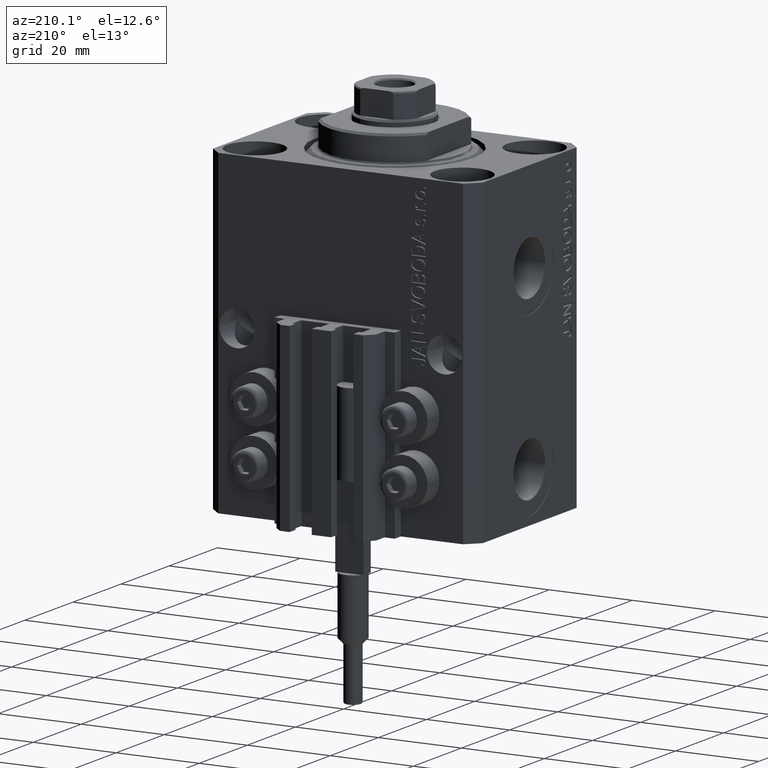
[diagram: clean part render]
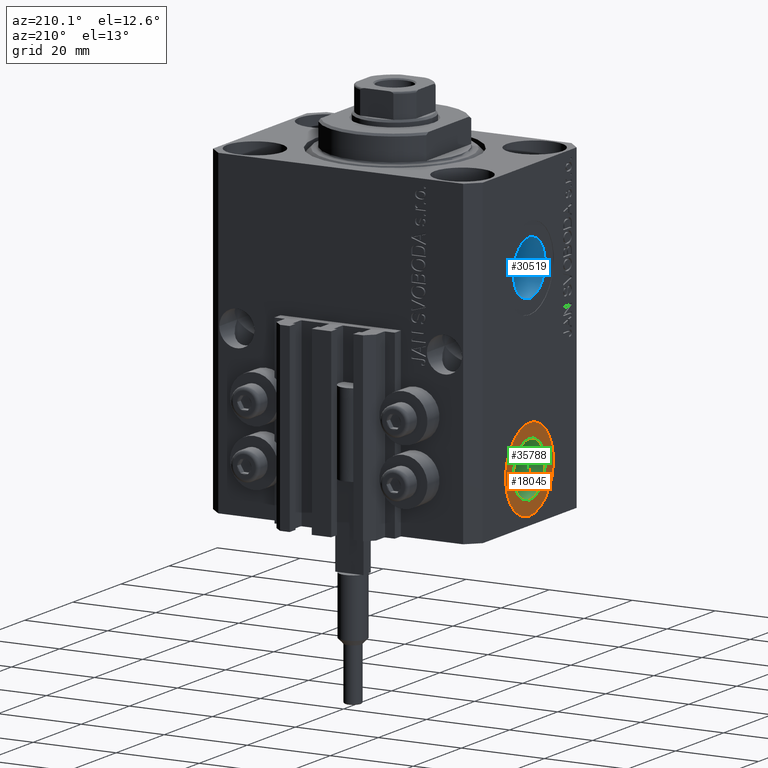
[diagram: same view with three faces highlighted in distinct colors, each labeled with its STEP entity id]
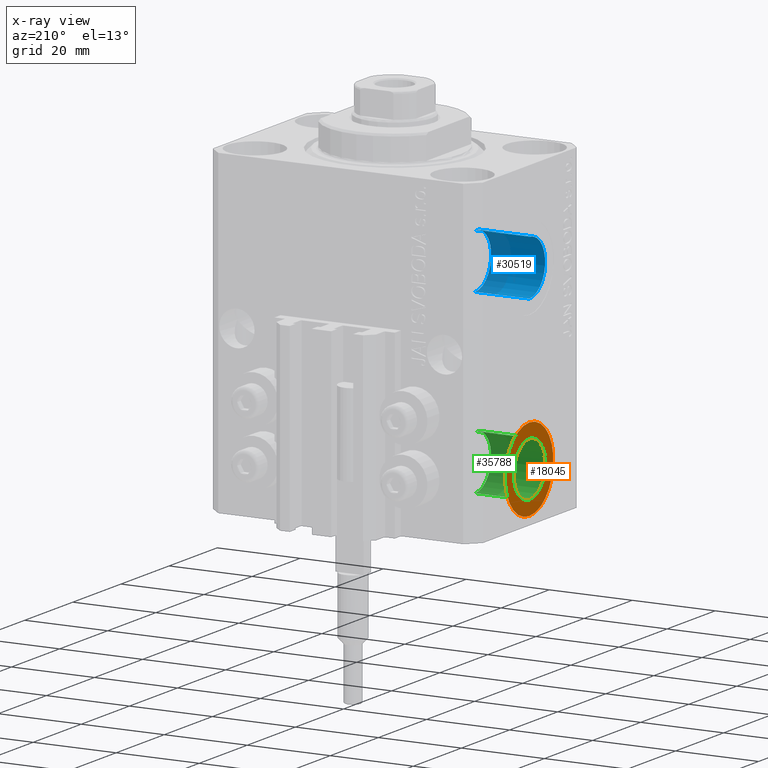
[diagram: x-ray of the same camera — body ghosted, the three highlighted faces saturated]
A machine part, auxiliary view with three faces highlighted in distinct colors.
The next image is the same camera in x-ray (body ghosted, the three faces saturated) — at least one of them is partly hidden behind the body in this view.
Their STEP definitions:

[orange] entity #18045 — the highlighted planar face has unit normal (-1, 0, 0).
#627 = DIRECTION ( 'NONE',  ( 0.000000000000000000, 0.000000000000000000, 1.000000000000000000 ) ) ;
#1023 = VERTEX_POINT ( 'NONE', #21652 ) ;
#1688 = DIRECTION ( 'NONE',  ( 0.000000000000000000, 0.000000000000000000, 1.000000000000000000 ) ) ;
#2278 = CARTESIAN_POINT ( 'NONE',  ( -32.39999999999650271, -6.938893903907228378E-15, -65.00000000000000000 ) ) ;
#3011 = DIRECTION ( 'NONE',  ( -1.000000000000000000, 0.000000000000000000, 0.000000000000000000 ) ) ;
#3275 = AXIS2_PLACEMENT_3D ( 'NONE', #34803, #5615, #1688 ) ;
#4843 = AXIS2_PLACEMENT_3D ( 'NONE', #2278, #13320, #32423 ) ;
#4921 = CIRCLE ( 'NONE', #43240, 9.999999999999994671 ) ;
#5615 = DIRECTION ( 'NONE',  ( -1.000000000000000000, 0.000000000000000000, 0.000000000000000000 ) ) ;
#7196 = CIRCLE ( 'NONE', #17376, 6.580000000000002736 ) ;
#9577 = DIRECTION ( 'NONE',  ( -1.000000000000000000, 0.000000000000000000, 0.000000000000000000 ) ) ;
#10133 = VERTEX_POINT ( 'NONE', #27253 ) ;
#10549 = CARTESIAN_POINT ( 'NONE',  ( -32.39999999999650271, -6.938893903907228378E-15, -65.00000000000000000 ) ) ;
#11468 = EDGE_CURVE ( 'NONE', #1023, #30636, #13744, .T. ) ;
#12946 = AXIS2_PLACEMENT_3D ( 'NONE', #29560, #22689, #627 ) ;
#13320 = DIRECTION ( 'NONE',  ( -1.000000000000000000, 0.000000000000000000, 0.000000000000000000 ) ) ;
#13744 = CIRCLE ( 'NONE', #12946, 9.999999999999994671 ) ;
#15809 = EDGE_LOOP ( 'NONE', ( #45282, #20601 ) ) ;
#17376 = AXIS2_PLACEMENT_3D ( 'NONE', #22119, #3011, #28988 ) ;
#17533 = EDGE_CURVE ( 'NONE', #10133, #42196, #7196, .T. ) ;
#18045 = ADVANCED_FACE ( 'NONE', ( #35261, #24242 ), #42881, .T. ) ;
#18541 = CARTESIAN_POINT ( 'NONE',  ( -32.39999999999650271, -6.938893903907228378E-15, -55.00000000000000711 ) ) ;
#20601 = ORIENTED_EDGE ( 'NONE', *, *, #11468, .T. ) ;
#21546 = CARTESIAN_POINT ( 'NONE',  ( -32.39999999999650271, -6.133076310068269336E-15, -71.57999999999999829 ) ) ;
#21652 = CARTESIAN_POINT ( 'NONE',  ( -32.39999999999650271, -5.714247104759875318E-15, -75.00000000000000000 ) ) ;
#22037 = EDGE_CURVE ( 'NONE', #30636, #1023, #4921, .T. ) ;
#22119 = CARTESIAN_POINT ( 'NONE',  ( -32.39999999999650271, -6.938893903907228378E-15, -65.00000000000000000 ) ) ;
#22689 = DIRECTION ( 'NONE',  ( -1.000000000000000000, 0.000000000000000000, 0.000000000000000000 ) ) ;
#24242 = FACE_OUTER_BOUND ( 'NONE', #15809, .T. ) ;
#25939 = CIRCLE ( 'NONE', #4843, 6.580000000000002736 ) ;
#27253 = CARTESIAN_POINT ( 'NONE',  ( -32.39999999999650271, -6.938893903907228378E-15, -58.42000000000000171 ) ) ;
#28988 = DIRECTION ( 'NONE',  ( 0.000000000000000000, 0.000000000000000000, 1.000000000000000000 ) ) ;
#29560 = CARTESIAN_POINT ( 'NONE',  ( -32.39999999999650271, -6.938893903907228378E-15, -65.00000000000000000 ) ) ;
#30636 = VERTEX_POINT ( 'NONE', #18541 ) ;
#32423 = DIRECTION ( 'NONE',  ( 0.000000000000000000, 0.000000000000000000, 1.000000000000000000 ) ) ;
#33421 = ORIENTED_EDGE ( 'NONE', *, *, #46789, .F. ) ;
#34803 = CARTESIAN_POINT ( 'NONE',  ( -32.39999999999650271, -6.938893903907228378E-15, -65.00000000000000000 ) ) ;
#35261 = FACE_BOUND ( 'NONE', #42822, .T. ) ;
#42196 = VERTEX_POINT ( 'NONE', #21546 ) ;
#42514 = ORIENTED_EDGE ( 'NONE', *, *, #17533, .F. ) ;
#42822 = EDGE_LOOP ( 'NONE', ( #42514, #33421 ) ) ;
#42881 = PLANE ( 'NONE',  #3275 ) ;
#43240 = AXIS2_PLACEMENT_3D ( 'NONE', #10549, #9577, #43874 ) ;
#43874 = DIRECTION ( 'NONE',  ( 0.000000000000000000, 0.000000000000000000, 1.000000000000000000 ) ) ;
#45282 = ORIENTED_EDGE ( 'NONE', *, *, #22037, .T. ) ;
#46789 = EDGE_CURVE ( 'NONE', #42196, #10133, #25939, .T. ) ;

[blue] entity #30519 — the highlighted cylindrical surface (edge-blend (fillet) strip) has radius 6.58 mm, axis along (-1, -0, -0).
#340 = DIRECTION ( 'NONE',  ( 0.000000000000000000, 0.000000000000000000, 1.000000000000000000 ) ) ;
#1057 = CARTESIAN_POINT ( 'NONE',  ( -19.39999999999650271, 8.058175938389580558E-16, -28.57999999999999829 ) ) ;
#2318 = DIRECTION ( 'NONE',  ( -1.000000000000000000, -0.000000000000000000, -0.000000000000000000 ) ) ;
#2934 = CARTESIAN_POINT ( 'NONE',  ( -32.39999999999650271, 0.000000000000000000, -15.41999999999999993 ) ) ;
#5320 = VERTEX_POINT ( 'NONE', #19698 ) ;
#5464 = LINE ( 'NONE', #1057, #14927 ) ;
#6542 = CARTESIAN_POINT ( 'NONE',  ( -19.39999999999650271, 0.000000000000000000, -22.00000000000000000 ) ) ;
#7023 = DIRECTION ( 'NONE',  ( 0.000000000000000000, 0.000000000000000000, 1.000000000000000000 ) ) ;
#8124 = CIRCLE ( 'NONE', #12804, 6.579999999999999183 ) ;
#8572 = ORIENTED_EDGE ( 'NONE', *, *, #31661, .F. ) ;
#9586 = CARTESIAN_POINT ( 'NONE',  ( -19.39999999999650271, 0.000000000000000000, -15.41999999999999993 ) ) ;
#11191 = CARTESIAN_POINT ( 'NONE',  ( -32.39999999999650271, 0.000000000000000000, -22.00000000000000000 ) ) ;
#12649 = LINE ( 'NONE', #27586, #20735 ) ;
#12804 = AXIS2_PLACEMENT_3D ( 'NONE', #41520, #34649, #340 ) ;
#13183 = DIRECTION ( 'NONE',  ( -1.000000000000000000, -0.000000000000000000, -0.000000000000000000 ) ) ;
#14927 = VECTOR ( 'NONE', #46646, 1000.000000000000000 ) ;
#16573 = CARTESIAN_POINT ( 'NONE',  ( -19.39999999999650271, 8.058175938389579572E-16, -28.57999999999999829 ) ) ;
#16921 = CIRCLE ( 'NONE', #23969, 6.579999999999999183 ) ;
#17110 = VERTEX_POINT ( 'NONE', #16573 ) ;
#18605 = EDGE_CURVE ( 'NONE', #17110, #5320, #5464, .T. ) ;
#19698 = CARTESIAN_POINT ( 'NONE',  ( -32.39999999999650271, 8.058175938389579572E-16, -28.57999999999999829 ) ) ;
#20735 = VECTOR ( 'NONE', #2318, 1000.000000000000000 ) ;
#23969 = AXIS2_PLACEMENT_3D ( 'NONE', #11191, #29325, #7023 ) ;
#24004 = EDGE_LOOP ( 'NONE', ( #30866, #29094, #33225, #8572 ) ) ;
#24964 = EDGE_CURVE ( 'NONE', #17110, #29817, #8124, .T. ) ;
#27586 = CARTESIAN_POINT ( 'NONE',  ( -19.39999999999650271, 0.000000000000000000, -15.41999999999999993 ) ) ;
#29094 = ORIENTED_EDGE ( 'NONE', *, *, #18605, .T. ) ;
#29325 = DIRECTION ( 'NONE',  ( -1.000000000000000000, 0.000000000000000000, 0.000000000000000000 ) ) ;
#29817 = VERTEX_POINT ( 'NONE', #9586 ) ;
#30519 = ADVANCED_FACE ( 'NONE', ( #35715 ), #46993, .F. ) ;
#30626 = EDGE_CURVE ( 'NONE', #5320, #32325, #16921, .T. ) ;
#30866 = ORIENTED_EDGE ( 'NONE', *, *, #24964, .F. ) ;
#31661 = EDGE_CURVE ( 'NONE', #29817, #32325, #12649, .T. ) ;
#32325 = VERTEX_POINT ( 'NONE', #2934 ) ;
#33225 = ORIENTED_EDGE ( 'NONE', *, *, #30626, .T. ) ;
#34649 = DIRECTION ( 'NONE',  ( -1.000000000000000000, 0.000000000000000000, 0.000000000000000000 ) ) ;
#35715 = FACE_OUTER_BOUND ( 'NONE', #24004, .T. ) ;
#36439 = DIRECTION ( 'NONE',  ( 0.000000000000000000, 0.000000000000000000, 1.000000000000000000 ) ) ;
#41520 = CARTESIAN_POINT ( 'NONE',  ( -19.39999999999650271, 0.000000000000000000, -22.00000000000000000 ) ) ;
#46646 = DIRECTION ( 'NONE',  ( -1.000000000000000000, -0.000000000000000000, -0.000000000000000000 ) ) ;
#46993 = CYLINDRICAL_SURFACE ( 'NONE', #47438, 6.579999999999999183 ) ;
#47438 = AXIS2_PLACEMENT_3D ( 'NONE', #6542, #13183, #36439 ) ;

[green] entity #35788 — the highlighted cylindrical surface (edge-blend (fillet) strip) has radius 6.58 mm, axis along (-1, -0, -0).
#2278 = CARTESIAN_POINT ( 'NONE',  ( -32.39999999999650271, -6.938893903907228378E-15, -65.00000000000000000 ) ) ;
#4843 = AXIS2_PLACEMENT_3D ( 'NONE', #2278, #13320, #32423 ) ;
#5724 = DIRECTION ( 'NONE',  ( 0.000000000000000000, 0.000000000000000000, 1.000000000000000000 ) ) ;
#6009 = LINE ( 'NONE', #20466, #43900 ) ;
#7872 = ORIENTED_EDGE ( 'NONE', *, *, #46867, .F. ) ;
#8701 = CARTESIAN_POINT ( 'NONE',  ( -19.39999999999650271, -6.133076310068269336E-15, -71.57999999999999829 ) ) ;
#10133 = VERTEX_POINT ( 'NONE', #27253 ) ;
#12152 = DIRECTION ( 'NONE',  ( -1.000000000000000000, -0.000000000000000000, -0.000000000000000000 ) ) ;
#13320 = DIRECTION ( 'NONE',  ( -1.000000000000000000, 0.000000000000000000, 0.000000000000000000 ) ) ;
#17336 = CIRCLE ( 'NONE', #29856, 6.580000000000002736 ) ;
#18532 = AXIS2_PLACEMENT_3D ( 'NONE', #25163, #40124, #32525 ) ;
#19616 = EDGE_CURVE ( 'NONE', #27761, #42196, #35378, .T. ) ;
#20466 = CARTESIAN_POINT ( 'NONE',  ( -19.39999999999650271, -6.938893903907228378E-15, -58.42000000000000171 ) ) ;
#21546 = CARTESIAN_POINT ( 'NONE',  ( -32.39999999999650271, -6.133076310068269336E-15, -71.57999999999999829 ) ) ;
#22027 = VECTOR ( 'NONE', #12152, 1000.000000000000000 ) ;
#25163 = CARTESIAN_POINT ( 'NONE',  ( -19.39999999999650271, -6.938893903907228378E-15, -65.00000000000000000 ) ) ;
#25285 = CARTESIAN_POINT ( 'NONE',  ( -19.39999999999650271, -6.133076310068269336E-15, -71.57999999999999829 ) ) ;
#25684 = ORIENTED_EDGE ( 'NONE', *, *, #44549, .F. ) ;
#25939 = CIRCLE ( 'NONE', #4843, 6.580000000000002736 ) ;
#26339 = VERTEX_POINT ( 'NONE', #33333 ) ;
#27253 = CARTESIAN_POINT ( 'NONE',  ( -32.39999999999650271, -6.938893903907228378E-15, -58.42000000000000171 ) ) ;
#27761 = VERTEX_POINT ( 'NONE', #25285 ) ;
#28613 = FACE_OUTER_BOUND ( 'NONE', #47394, .T. ) ;
#29856 = AXIS2_PLACEMENT_3D ( 'NONE', #42983, #39299, #5724 ) ;
#32423 = DIRECTION ( 'NONE',  ( 0.000000000000000000, 0.000000000000000000, 1.000000000000000000 ) ) ;
#32525 = DIRECTION ( 'NONE',  ( 0.000000000000000000, 0.000000000000000000, 1.000000000000000000 ) ) ;
#33250 = CYLINDRICAL_SURFACE ( 'NONE', #18532, 6.580000000000002736 ) ;
#33333 = CARTESIAN_POINT ( 'NONE',  ( -19.39999999999650271, -6.938893903907228378E-15, -58.42000000000000171 ) ) ;
#35378 = LINE ( 'NONE', #8701, #22027 ) ;
#35658 = DIRECTION ( 'NONE',  ( -1.000000000000000000, -0.000000000000000000, -0.000000000000000000 ) ) ;
#35788 = ADVANCED_FACE ( 'NONE', ( #28613 ), #33250, .F. ) ;
#39299 = DIRECTION ( 'NONE',  ( -1.000000000000000000, 0.000000000000000000, 0.000000000000000000 ) ) ;
#40124 = DIRECTION ( 'NONE',  ( -1.000000000000000000, -0.000000000000000000, -0.000000000000000000 ) ) ;
#41085 = ORIENTED_EDGE ( 'NONE', *, *, #19616, .T. ) ;
#42196 = VERTEX_POINT ( 'NONE', #21546 ) ;
#42983 = CARTESIAN_POINT ( 'NONE',  ( -19.39999999999650271, -6.938893903907228378E-15, -65.00000000000000000 ) ) ;
#43900 = VECTOR ( 'NONE', #35658, 1000.000000000000000 ) ;
#44541 = ORIENTED_EDGE ( 'NONE', *, *, #46789, .T. ) ;
#44549 = EDGE_CURVE ( 'NONE', #26339, #10133, #6009, .T. ) ;
#46789 = EDGE_CURVE ( 'NONE', #42196, #10133, #25939, .T. ) ;
#46867 = EDGE_CURVE ( 'NONE', #27761, #26339, #17336, .T. ) ;
#47394 = EDGE_LOOP ( 'NONE', ( #7872, #41085, #44541, #25684 ) ) ;